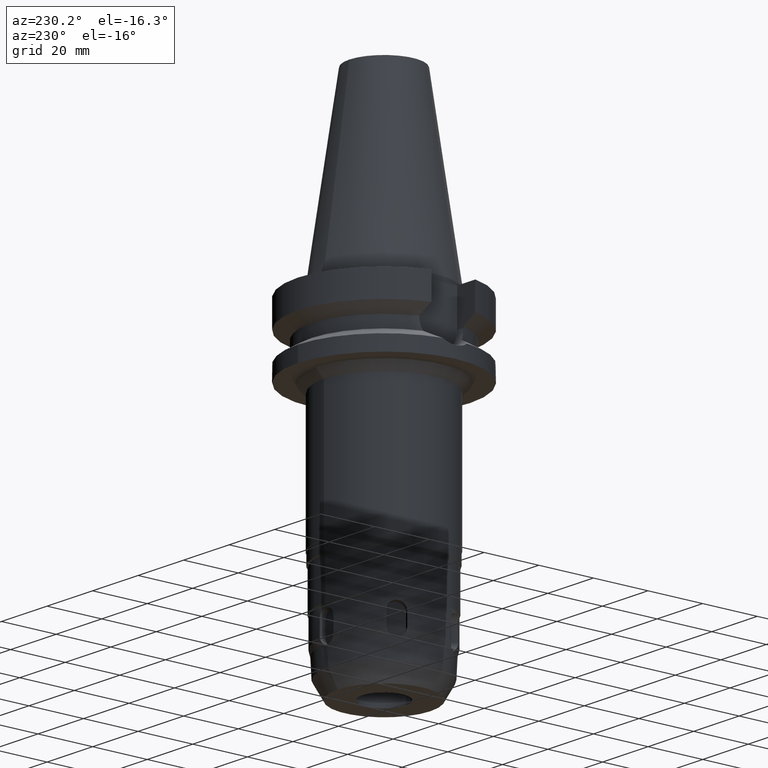
[diagram: clean part render]
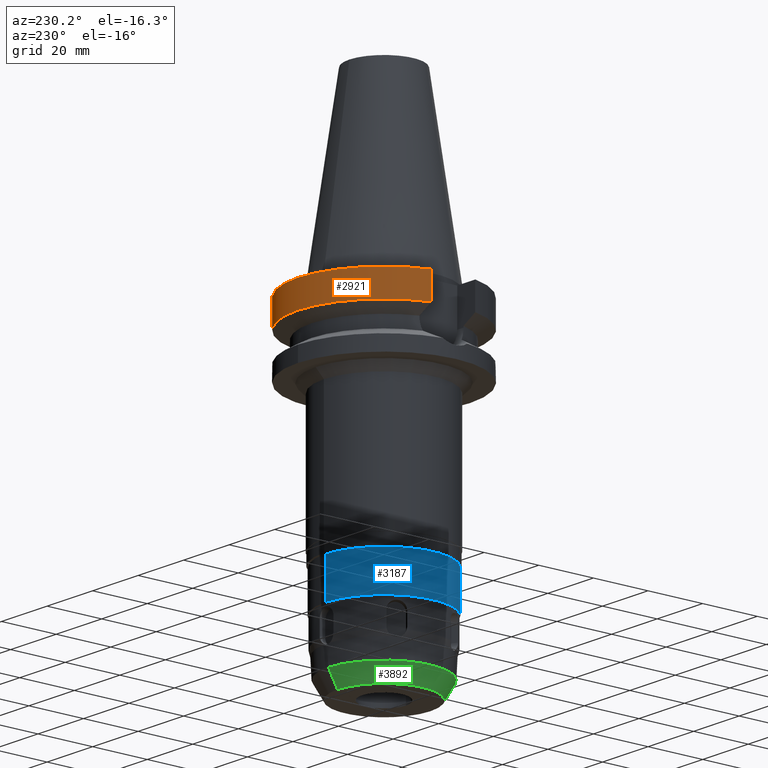
[diagram: same view with three faces highlighted in distinct colors, each labeled with its STEP entity id]
A machine part, auxiliary view with three faces highlighted in distinct colors.
Their STEP definitions:

[orange] entity #2921 — the highlighted cylindrical surface (partial cylindrical patch) has radius 31.5 mm, axis along (0, 0, -1).
#108=CARTESIAN_POINT('',(0.E0,2.139090564071E-14,-2.E0));
#109=DIRECTION('',(0.E0,0.E0,-1.E0));
#110=DIRECTION('',(-9.667943721520E-1,2.555555555556E-1,0.E0));
#111=AXIS2_PLACEMENT_3D('',#108,#109,#110);
#116=CARTESIAN_POINT('',(0.E0,2.139090564071E-14,-2.E0));
#117=DIRECTION('',(0.E0,0.E0,-1.E0));
#118=DIRECTION('',(0.E0,1.E0,0.E0));
#119=AXIS2_PLACEMENT_3D('',#116,#117,#118);
#344=CARTESIAN_POINT('',(3.045402291369E1,8.049999277775E0,-1.156551215759E1));
#393=CARTESIAN_POINT('',(-3.045402162747E1,8.050004143681E0,-1.156546832815E1));
#414=CARTESIAN_POINT('',(0.E0,1.065333950388E-14,-1.156550565267E1));
#415=DIRECTION('',(0.E0,0.E0,1.E0));
#416=DIRECTION('',(9.667943721520E-1,2.555555555555E-1,0.E0));
#417=AXIS2_PLACEMENT_3D('',#414,#415,#416);
#422=CARTESIAN_POINT('',(0.E0,1.065333950388E-14,-1.156550565267E1));
#423=DIRECTION('',(0.E0,0.E0,1.E0));
#424=DIRECTION('',(0.E0,1.E0,0.E0));
#425=AXIS2_PLACEMENT_3D('',#422,#423,#424);
#430=DIRECTION('',(1.145069716966E-7,4.331916996761E-7,-9.999999999999E-1));
#431=VECTOR('',#430,9.565468328153E0);
#432=CARTESIAN_POINT('',(-3.045402272279E1,8.05E0,-2.E0));
#433=LINE('',#432,#431);
#437=DIRECTION('',(-1.995784057709E-8,7.550293931309E-8,1.E0));
#438=VECTOR('',#437,9.565512157593E0);
#439=CARTESIAN_POINT('',(3.045402291369E1,8.049999277775E0,-1.156551215759E1));
#440=LINE('',#439,#438);
#2540=CARTESIAN_POINT('',(-3.045402272279E1,8.05E0,-2.E0));
#2541=VERTEX_POINT('',#2540);
#2542=CARTESIAN_POINT('',(-3.046064939756E-14,3.15E1,-2.E0));
#2543=CARTESIAN_POINT('',(3.045402272279E1,8.05E0,-2.E0));
#2544=VERTEX_POINT('',#2542);
#2545=VERTEX_POINT('',#2543);
#2562=VERTEX_POINT('',#393);
#2567=VERTEX_POINT('',#344);
#2568=CARTESIAN_POINT('',(0.E0,3.15E1,-1.156550565267E1));
#2569=VERTEX_POINT('',#2568);
#2908=CARTESIAN_POINT('',(0.E0,2.139090564071E-14,7.467E1));
#2909=DIRECTION('',(0.E0,0.E0,-1.E0));
#2910=DIRECTION('',(0.E0,-1.E0,0.E0));
#2911=AXIS2_PLACEMENT_3D('',#2908,#2909,#2910);
#2912=CYLINDRICAL_SURFACE('',#2911,3.15E1);
#2913=ORIENTED_EDGE('',*,*,#2883,.T.);
#2914=ORIENTED_EDGE('',*,*,#2903,.F.);
#2915=ORIENTED_EDGE('',*,*,#2901,.F.);
#2916=ORIENTED_EDGE('',*,*,#2845,.T.);
#2917=ORIENTED_EDGE('',*,*,#2691,.F.);
#2918=ORIENTED_EDGE('',*,*,#2689,.F.);
#2919=EDGE_LOOP('',(#2913,#2914,#2915,#2916,#2917,#2918));
#2920=FACE_OUTER_BOUND('',#2919,.F.);
#112=CIRCLE('',#111,3.15E1);
#120=CIRCLE('',#119,3.15E1);
#418=CIRCLE('',#417,3.15E1);
#426=CIRCLE('',#425,3.15E1);
#2689=EDGE_CURVE('',#2541,#2544,#112,.T.);
#2691=EDGE_CURVE('',#2544,#2545,#120,.T.);
#2845=EDGE_CURVE('',#2567,#2545,#440,.T.);
#2883=EDGE_CURVE('',#2541,#2562,#433,.T.);
#2901=EDGE_CURVE('',#2567,#2569,#418,.T.);
#2903=EDGE_CURVE('',#2569,#2562,#426,.T.);
#2921=ADVANCED_FACE('',(#2920),#2912,.T.);

[blue] entity #3187 — the highlighted cylindrical surface (partial cylindrical patch) has radius 21.5 mm, axis along (0, 0, -1).
#787=CARTESIAN_POINT('',(0.E0,0.E0,-8.115E1));
#788=DIRECTION('',(0.E0,0.E0,-1.E0));
#789=DIRECTION('',(0.E0,-1.E0,0.E0));
#790=AXIS2_PLACEMENT_3D('',#787,#788,#789);
#795=DIRECTION('',(0.E0,0.E0,-1.E0));
#796=VECTOR('',#795,1.415E1);
#797=CARTESIAN_POINT('',(0.E0,-2.15E1,-8.115E1));
#798=LINE('',#797,#796);
#802=DIRECTION('',(0.E0,0.E0,-1.E0));
#803=VECTOR('',#802,1.415E1);
#804=CARTESIAN_POINT('',(0.E0,2.15E1,-8.115E1));
#805=LINE('',#804,#803);
#832=CARTESIAN_POINT('',(0.E0,0.E0,-9.53E1));
#833=DIRECTION('',(0.E0,0.E0,1.E0));
#834=DIRECTION('',(0.E0,1.E0,0.E0));
#835=AXIS2_PLACEMENT_3D('',#832,#833,#834);
#2453=CARTESIAN_POINT('',(0.E0,2.15E1,-9.53E1));
#2454=VERTEX_POINT('',#2453);
#2455=CARTESIAN_POINT('',(0.E0,-2.15E1,-9.53E1));
#2456=VERTEX_POINT('',#2455);
#2457=CARTESIAN_POINT('',(0.E0,2.15E1,-8.115E1));
#2458=VERTEX_POINT('',#2457);
#2459=CARTESIAN_POINT('',(0.E0,-2.15E1,-8.115E1));
#2460=VERTEX_POINT('',#2459);
#3173=CARTESIAN_POINT('',(0.E0,2.139090564071E-14,7.467E1));
#3174=DIRECTION('',(0.E0,0.E0,-1.E0));
#3175=DIRECTION('',(0.E0,-1.E0,0.E0));
#3176=AXIS2_PLACEMENT_3D('',#3173,#3174,#3175);
#3177=CYLINDRICAL_SURFACE('',#3176,2.15E1);
#3179=ORIENTED_EDGE('',*,*,#3178,.F.);
#3180=ORIENTED_EDGE('',*,*,#3168,.F.);
#3182=ORIENTED_EDGE('',*,*,#3181,.T.);
#3184=ORIENTED_EDGE('',*,*,#3183,.F.);
#3185=EDGE_LOOP('',(#3179,#3180,#3182,#3184));
#3186=FACE_OUTER_BOUND('',#3185,.F.);
#791=CIRCLE('',#790,2.15E1);
#836=CIRCLE('',#835,2.15E1);
#3168=EDGE_CURVE('',#2460,#2458,#791,.T.);
#3178=EDGE_CURVE('',#2458,#2454,#805,.T.);
#3181=EDGE_CURVE('',#2460,#2456,#798,.T.);
#3183=EDGE_CURVE('',#2454,#2456,#836,.T.);
#3187=ADVANCED_FACE('',(#3186),#3177,.T.);

[green] entity #3892 — the highlighted conical surface has half-angle 30 deg.
#1907=CARTESIAN_POINT('',(0.E0,0.E0,-1.14138E2));
#1908=DIRECTION('',(0.E0,0.E0,-1.E0));
#1909=DIRECTION('',(1.097976556634E-14,-1.E0,0.E0));
#1910=AXIS2_PLACEMENT_3D('',#1907,#1908,#1909);
#1925=DIRECTION('',(-1.655371514058E-14,4.999999999999E-1,-8.660254037845E-1));
#1926=VECTOR('',#1925,6.768854555979E0);
#1927=CARTESIAN_POINT('',(1.106599301772E-13,-2.038442727799E1,-1.14138E2));
#1928=LINE('',#1927,#1926);
#1932=DIRECTION('',(0.E0,-4.999999999999E-1,-8.660254037845E-1));
#1933=VECTOR('',#1932,6.768854555979E0);
#1934=CARTESIAN_POINT('',(0.E0,2.038442727799E1,-1.14138E2));
#1935=LINE('',#1934,#1933);
#1955=CARTESIAN_POINT('',(0.E0,0.E0,-1.2E2));
#1956=DIRECTION('',(0.E0,0.E0,1.E0));
#1957=DIRECTION('',(0.E0,1.E0,0.E0));
#1958=AXIS2_PLACEMENT_3D('',#1955,#1956,#1957);
#2327=CARTESIAN_POINT('',(0.E0,-1.7E1,-1.2E2));
#2328=CARTESIAN_POINT('',(0.E0,1.7E1,-1.2E2));
#2329=VERTEX_POINT('',#2327);
#2330=VERTEX_POINT('',#2328);
#2331=CARTESIAN_POINT('',(0.E0,2.038442727799E1,-1.14138E2));
#2332=VERTEX_POINT('',#2331);
#2333=CARTESIAN_POINT('',(1.106599301772E-13,-2.038442727799E1,-1.14138E2));
#2334=VERTEX_POINT('',#2333);
#3878=CARTESIAN_POINT('',(0.E0,0.E0,-1.17069E2));
#3879=DIRECTION('',(0.E0,0.E0,1.E0));
#3880=DIRECTION('',(0.E0,1.E0,0.E0));
#3881=AXIS2_PLACEMENT_3D('',#3878,#3879,#3880);
#3882=CONICAL_SURFACE('',#3881,1.869221363899E1,3.E1);
#3884=ORIENTED_EDGE('',*,*,#3883,.F.);
#3885=ORIENTED_EDGE('',*,*,#3870,.F.);
#3887=ORIENTED_EDGE('',*,*,#3886,.T.);
#3889=ORIENTED_EDGE('',*,*,#3888,.F.);
#3890=EDGE_LOOP('',(#3884,#3885,#3887,#3889));
#3891=FACE_OUTER_BOUND('',#3890,.F.);
#1911=CIRCLE('',#1910,2.038442727799E1);
#1959=CIRCLE('',#1958,1.7E1);
#3870=EDGE_CURVE('',#2334,#2332,#1911,.T.);
#3883=EDGE_CURVE('',#2332,#2330,#1935,.T.);
#3886=EDGE_CURVE('',#2334,#2329,#1928,.T.);
#3888=EDGE_CURVE('',#2330,#2329,#1959,.T.);
#3892=ADVANCED_FACE('',(#3891),#3882,.T.);